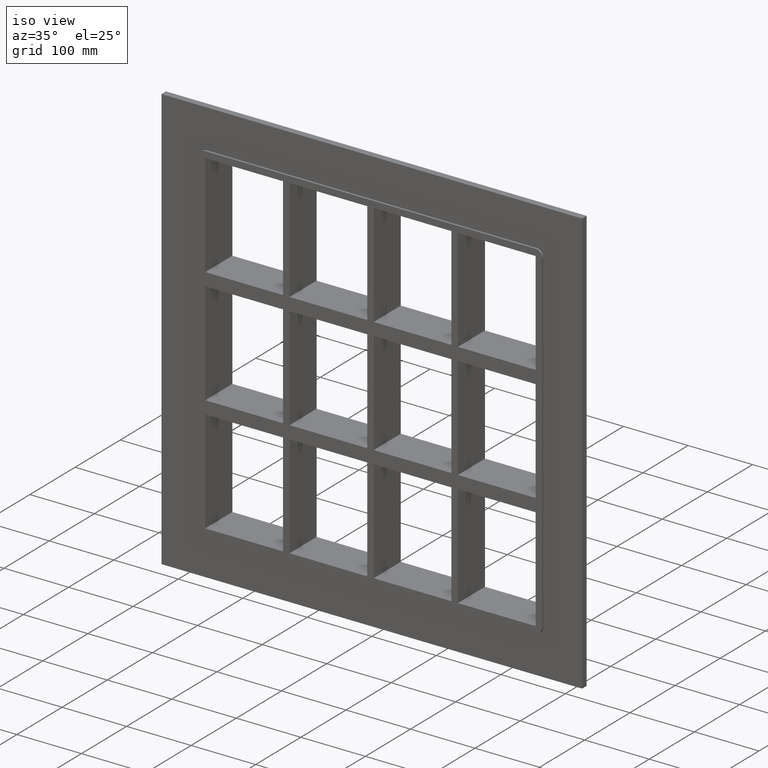
[diagram: clean part render]
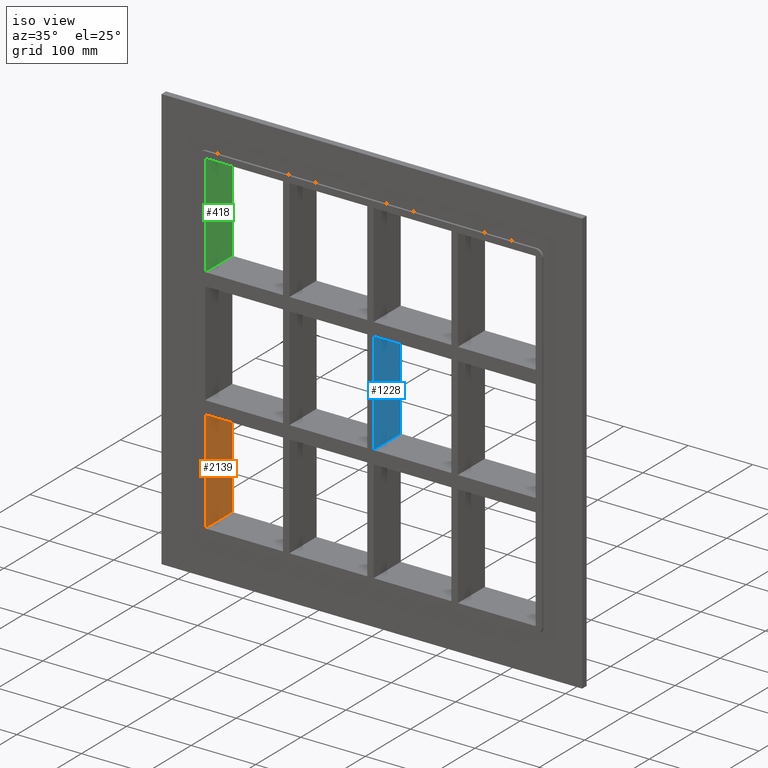
[diagram: same view with three faces highlighted in distinct colors, each labeled with its STEP entity id]
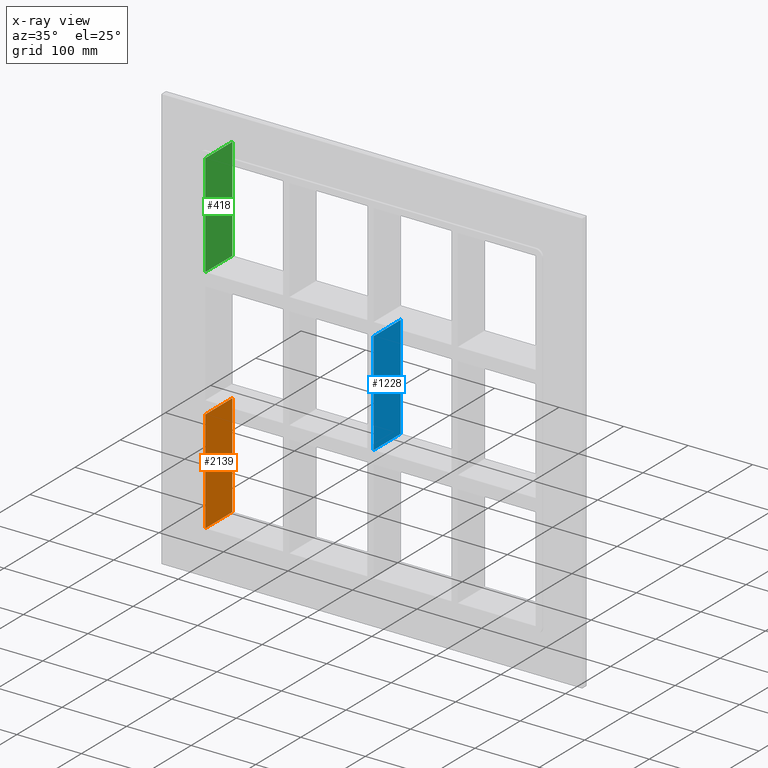
[diagram: x-ray of the same camera — body ghosted, the three highlighted faces saturated]
A machine part, iso view with three faces highlighted in distinct colors.
The next image is the same camera in x-ray (body ghosted, the three faces saturated) — at least one of them is partly hidden behind the body in this view.
Their STEP definitions:

[orange] entity #2139 — the highlighted planar face has unit normal (-1, 0, 0).
#892=CARTESIAN_POINT('',(-255.99999999999966,57.0,-99.750000000009322));
#893=VERTEX_POINT('',#892);
#894=CARTESIAN_POINT('',(-255.99999999999997,57.0,-259.25000000000006));
#895=VERTEX_POINT('',#894);
#896=CARTESIAN_POINT('',(-256.0,57.0,-99.750000000009322));
#897=DIRECTION('',(0.0,0.0,-1.0));
#898=VECTOR('',#897,159.49999999999068);
#899=LINE('',#896,#898);
#900=EDGE_CURVE('',#893,#895,#899,.T.);
#1551=CARTESIAN_POINT('',(-255.99999999999966,-3.0,-99.750000000009322));
#1552=VERTEX_POINT('',#1551);
#1567=CARTESIAN_POINT('',(-255.99999999999997,-3.0,-259.25000000000006));
#1568=VERTEX_POINT('',#1567);
#1575=CARTESIAN_POINT('',(-256.0,-3.0,-259.25));
#1576=DIRECTION('',(0.0,0.0,1.0));
#1577=VECTOR('',#1576,159.49999999999068);
#1578=LINE('',#1575,#1577);
#1579=EDGE_CURVE('',#1568,#1552,#1578,.T.);
#1707=CARTESIAN_POINT('',(-256.0,57.000000000000007,-99.750000000009322));
#1708=DIRECTION('',(0.0,-1.0,0.0));
#1709=VECTOR('',#1708,60.000000000000007);
#1710=LINE('',#1707,#1709);
#1711=EDGE_CURVE('',#893,#1552,#1710,.T.);
#1818=CARTESIAN_POINT('',(-256.0,-3.0,-259.25000000000006));
#1819=DIRECTION('',(0.0,1.0,0.0));
#1820=VECTOR('',#1819,60.0);
#1821=LINE('',#1818,#1820);
#1822=EDGE_CURVE('',#1568,#895,#1821,.T.);
#2128=CARTESIAN_POINT('',(-256.0,0.0,-259.25000000000006));
#2129=DIRECTION('',(-1.0,0.0,0.0));
#2130=DIRECTION('',(0.0,0.0,1.0));
#2131=AXIS2_PLACEMENT_3D('',#2128,#2129,#2130);
#2132=PLANE('',#2131);
#2133=ORIENTED_EDGE('',*,*,#1711,.T.);
#2134=ORIENTED_EDGE('',*,*,#1579,.F.);
#2135=ORIENTED_EDGE('',*,*,#1822,.T.);
#2136=ORIENTED_EDGE('',*,*,#900,.F.);
#2137=EDGE_LOOP('',(#2133,#2134,#2135,#2136));
#2138=FACE_OUTER_BOUND('',#2137,.T.);
#2139=ADVANCED_FACE('',(#2138),#2132,.F.);

[blue] entity #1228 — the highlighted planar face has unit normal (1, 0, 0).
#203=CARTESIAN_POINT('',(5.000000000007283,-3.0,79.749999999990678));
#204=VERTEX_POINT('',#203);
#211=CARTESIAN_POINT('',(5.000000000007283,57.0,79.749999999990678));
#212=VERTEX_POINT('',#211);
#213=CARTESIAN_POINT('',(5.000000000007283,57.0,79.749999999990663));
#214=DIRECTION('',(0.0,-1.0,0.0));
#215=VECTOR('',#214,60.0);
#216=LINE('',#213,#215);
#217=EDGE_CURVE('',#212,#204,#216,.T.);
#843=CARTESIAN_POINT('',(5.000000000007283,57.0,-79.749999999999943));
#844=VERTEX_POINT('',#843);
#845=CARTESIAN_POINT('',(5.000000000007283,57.0,79.749999999990678));
#846=DIRECTION('',(0.0,0.0,-1.0));
#847=VECTOR('',#846,159.49999999999062);
#848=LINE('',#845,#847);
#849=EDGE_CURVE('',#212,#844,#848,.T.);
#1205=CARTESIAN_POINT('',(5.000000000007283,-3.0,259.25000000000006));
#1206=DIRECTION('',(1.0,0.0,0.0));
#1207=DIRECTION('',(0.0,0.0,-1.0));
#1208=AXIS2_PLACEMENT_3D('',#1205,#1206,#1207);
#1209=PLANE('',#1208);
#1210=ORIENTED_EDGE('',*,*,#217,.T.);
#1211=CARTESIAN_POINT('',(5.000000000007283,-3.0,-79.749999999999943));
#1212=VERTEX_POINT('',#1211);
#1213=CARTESIAN_POINT('',(5.000000000007283,-3.0,79.749999999990678));
#1214=DIRECTION('',(0.0,0.0,-1.0));
#1215=VECTOR('',#1214,159.49999999999062);
#1216=LINE('',#1213,#1215);
#1217=EDGE_CURVE('',#204,#1212,#1216,.T.);
#1218=ORIENTED_EDGE('',*,*,#1217,.T.);
#1219=CARTESIAN_POINT('',(5.000000000007283,57.0,-79.749999999999943));
#1220=DIRECTION('',(0.0,-1.0,0.0));
#1221=VECTOR('',#1220,60.0);
#1222=LINE('',#1219,#1221);
#1223=EDGE_CURVE('',#844,#1212,#1222,.T.);
#1224=ORIENTED_EDGE('',*,*,#1223,.F.);
#1225=ORIENTED_EDGE('',*,*,#849,.F.);
#1226=EDGE_LOOP('',(#1210,#1218,#1224,#1225));
#1227=FACE_OUTER_BOUND('',#1226,.T.);
#1228=ADVANCED_FACE('',(#1227),#1209,.T.);

[green] entity #418 — the highlighted planar face has unit normal (-1, 0, 0).
#243=CARTESIAN_POINT('',(-255.99999999999966,57.0,99.750000000000085));
#244=VERTEX_POINT('',#243);
#251=CARTESIAN_POINT('',(-255.99999999999966,-3.0,99.750000000000085));
#252=VERTEX_POINT('',#251);
#253=CARTESIAN_POINT('',(-256.0,-3.0,99.750000000000085));
#254=DIRECTION('',(0.0,1.0,0.0));
#255=VECTOR('',#254,60.000000000000007);
#256=LINE('',#253,#255);
#257=EDGE_CURVE('',#252,#244,#256,.T.);
#388=CARTESIAN_POINT('',(-256.0,0.0,-259.25000000000006));
#389=DIRECTION('',(-1.0,0.0,0.0));
#390=DIRECTION('',(0.0,0.0,1.0));
#391=AXIS2_PLACEMENT_3D('',#388,#389,#390);
#392=PLANE('',#391);
#393=ORIENTED_EDGE('',*,*,#257,.T.);
#394=CARTESIAN_POINT('',(-255.99999999999997,57.0,259.25000000000006));
#395=VERTEX_POINT('',#394);
#396=CARTESIAN_POINT('',(-256.0,57.0,259.25));
#397=DIRECTION('',(0.0,0.0,-1.0));
#398=VECTOR('',#397,159.49999999999994);
#399=LINE('',#396,#398);
#400=EDGE_CURVE('',#395,#244,#399,.T.);
#401=ORIENTED_EDGE('',*,*,#400,.F.);
#402=CARTESIAN_POINT('',(-255.99999999999997,-3.0,259.25000000000006));
#403=VERTEX_POINT('',#402);
#404=CARTESIAN_POINT('',(-256.0,-3.0,259.25000000000006));
#405=DIRECTION('',(0.0,1.0,0.0));
#406=VECTOR('',#405,60.0);
#407=LINE('',#404,#406);
#408=EDGE_CURVE('',#403,#395,#407,.T.);
#409=ORIENTED_EDGE('',*,*,#408,.F.);
#410=CARTESIAN_POINT('',(-256.0,-3.0,99.750000000000057));
#411=DIRECTION('',(0.0,0.0,1.0));
#412=VECTOR('',#411,159.49999999999994);
#413=LINE('',#410,#412);
#414=EDGE_CURVE('',#252,#403,#413,.T.);
#415=ORIENTED_EDGE('',*,*,#414,.F.);
#416=EDGE_LOOP('',(#393,#401,#409,#415));
#417=FACE_OUTER_BOUND('',#416,.T.);
#418=ADVANCED_FACE('',(#417),#392,.F.);